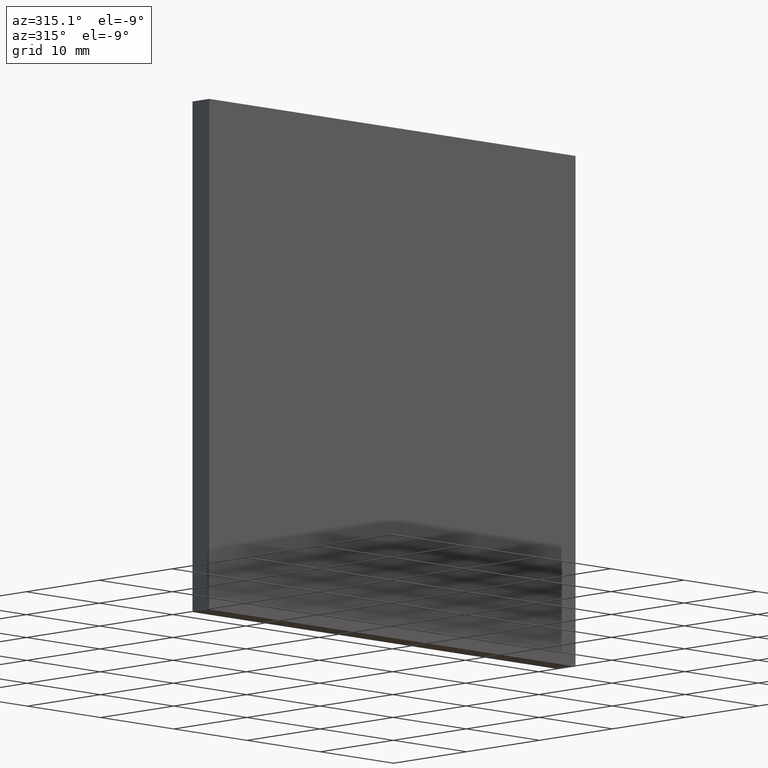
[diagram: clean part render]
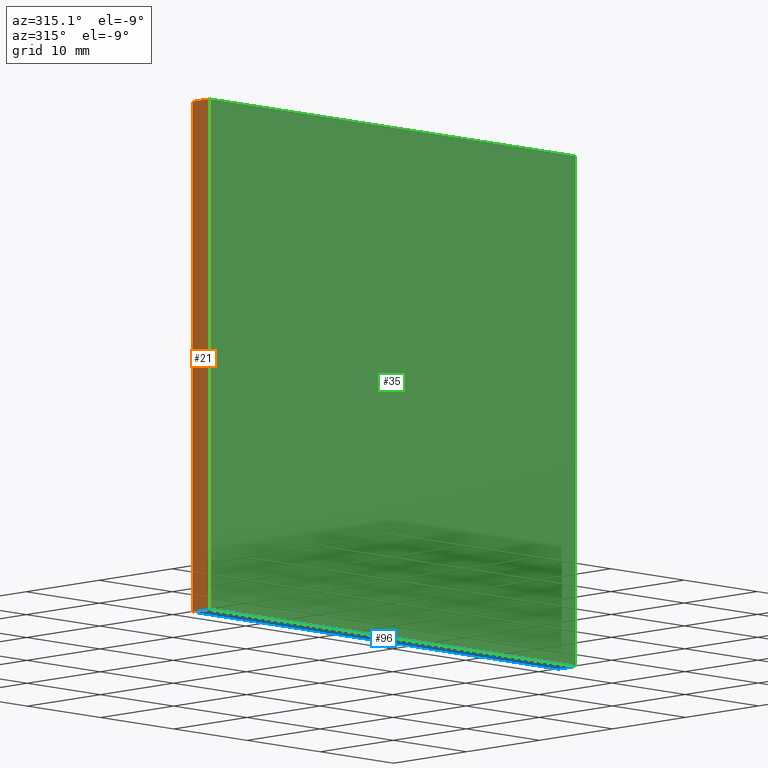
[diagram: same view with three faces highlighted in distinct colors, each labeled with its STEP entity id]
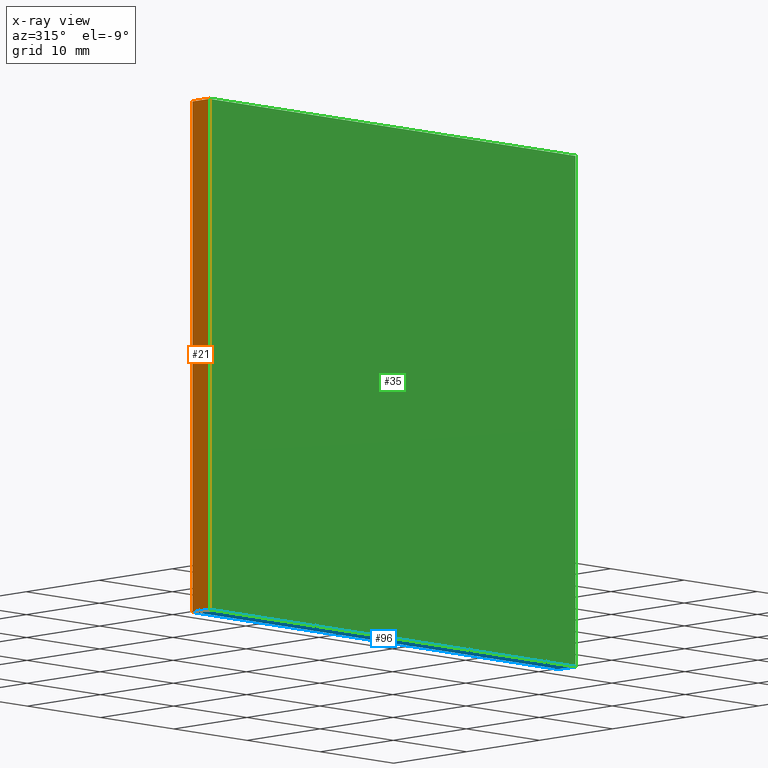
[diagram: x-ray of the same camera — body ghosted, the three highlighted faces saturated]
A machine part, auxiliary view with three faces highlighted in distinct colors.
The next image is the same camera in x-ray (body ghosted, the three faces saturated) — at least one of them is partly hidden behind the body in this view.
Their STEP definitions:

[orange] entity #21 — the highlighted planar face has unit normal (1, -0, 0).
#7 = DIRECTION ( 'NONE',  ( -0.0000000000000000000, -0.0000000000000000000, 1.000000000000000000 ) ) ;
#14 = ORIENTED_EDGE ( 'NONE', *, *, #66, .F. ) ;
#17 = DIRECTION ( 'NONE',  ( -0.0000000000000000000, -0.0000000000000000000, 1.000000000000000000 ) ) ;
#21 = ADVANCED_FACE ( 'NONE', ( #98 ), #199, .F. ) ;
#30 = CARTESIAN_POINT ( 'NONE',  ( -25.00000000000000400, 2.299999999999999800, -24.99999999999999600 ) ) ;
#38 = LINE ( 'NONE', #30, #43 ) ;
#43 = VECTOR ( 'NONE', #58, 1000.000000000000000 ) ;
#54 = CARTESIAN_POINT ( 'NONE',  ( -25.00000000000000400, 2.299999999999999800, 25.00000000000000400 ) ) ;
#58 = DIRECTION ( 'NONE',  ( -0.0000000000000000000, -1.000000000000000000, -0.0000000000000000000 ) ) ;
#60 = VERTEX_POINT ( 'NONE', #189 ) ;
#64 = DIRECTION ( 'NONE',  ( 0.0000000000000000000, 0.0000000000000000000, -1.000000000000000000 ) ) ;
#66 = EDGE_CURVE ( 'NONE', #92, #117, #76, .T. ) ;
#76 = LINE ( 'NONE', #54, #136 ) ;
#88 = LINE ( 'NONE', #194, #135 ) ;
#92 = VERTEX_POINT ( 'NONE', #149 ) ;
#93 = LINE ( 'NONE', #123, #185 ) ;
#97 = EDGE_CURVE ( 'NONE', #117, #60, #93, .T. ) ;
#98 = FACE_OUTER_BOUND ( 'NONE', #157, .T. ) ;
#116 = EDGE_CURVE ( 'NONE', #188, #60, #88, .T. ) ;
#117 = VERTEX_POINT ( 'NONE', #179 ) ;
#118 = DIRECTION ( 'NONE',  ( 1.000000000000000000, -0.0000000000000000000, 0.0000000000000000000 ) ) ;
#123 = CARTESIAN_POINT ( 'NONE',  ( -25.00000000000000400, 2.299999999999999800, 25.00000000000000400 ) ) ;
#130 = AXIS2_PLACEMENT_3D ( 'NONE', #140, #118, #64 ) ;
#135 = VECTOR ( 'NONE', #7, 1000.000000000000000 ) ;
#136 = VECTOR ( 'NONE', #17, 1000.000000000000000 ) ;
#140 = CARTESIAN_POINT ( 'NONE',  ( -25.00000000000000400, 2.299999999999999800, 25.00000000000000400 ) ) ;
#149 = CARTESIAN_POINT ( 'NONE',  ( -25.00000000000000400, 2.299999999999999800, -24.99999999999999600 ) ) ;
#154 = EDGE_CURVE ( 'NONE', #92, #188, #38, .T. ) ;
#157 = EDGE_LOOP ( 'NONE', ( #198, #159, #14, #169 ) ) ;
#159 = ORIENTED_EDGE ( 'NONE', *, *, #97, .F. ) ;
#169 = ORIENTED_EDGE ( 'NONE', *, *, #154, .T. ) ;
#176 = CARTESIAN_POINT ( 'NONE',  ( -25.00000000000000400, 0.0000000000000000000, -24.99999999999999600 ) ) ;
#179 = CARTESIAN_POINT ( 'NONE',  ( -25.00000000000000400, 2.299999999999999800, 25.00000000000000400 ) ) ;
#185 = VECTOR ( 'NONE', #190, 1000.000000000000000 ) ;
#188 = VERTEX_POINT ( 'NONE', #176 ) ;
#189 = CARTESIAN_POINT ( 'NONE',  ( -25.00000000000000400, 0.0000000000000000000, 25.00000000000000400 ) ) ;
#190 = DIRECTION ( 'NONE',  ( -0.0000000000000000000, -1.000000000000000000, -0.0000000000000000000 ) ) ;
#194 = CARTESIAN_POINT ( 'NONE',  ( -25.00000000000000400, 0.0000000000000000000, 25.00000000000000400 ) ) ;
#198 = ORIENTED_EDGE ( 'NONE', *, *, #116, .T. ) ;
#199 = PLANE ( 'NONE',  #130 ) ;

[blue] entity #96 — the highlighted planar face has unit normal (0, 0, 1).
#5 = LINE ( 'NONE', #37, #132 ) ;
#6 = VERTEX_POINT ( 'NONE', #197 ) ;
#10 = LINE ( 'NONE', #79, #86 ) ;
#24 = CARTESIAN_POINT ( 'NONE',  ( -25.00000000000000400, 2.299999999999999800, -24.99999999999999600 ) ) ;
#29 = CARTESIAN_POINT ( 'NONE',  ( -25.00000000000000400, 0.0000000000000000000, -24.99999999999999600 ) ) ;
#30 = CARTESIAN_POINT ( 'NONE',  ( -25.00000000000000400, 2.299999999999999800, -24.99999999999999600 ) ) ;
#31 = DIRECTION ( 'NONE',  ( -0.0000000000000000000, -1.000000000000000000, -0.0000000000000000000 ) ) ;
#37 = CARTESIAN_POINT ( 'NONE',  ( -25.00000000000000400, 2.299999999999999800, -24.99999999999999600 ) ) ;
#38 = LINE ( 'NONE', #30, #43 ) ;
#43 = VECTOR ( 'NONE', #58, 1000.000000000000000 ) ;
#47 = ORIENTED_EDGE ( 'NONE', *, *, #163, .T. ) ;
#50 = FACE_OUTER_BOUND ( 'NONE', #87, .T. ) ;
#51 = VERTEX_POINT ( 'NONE', #151 ) ;
#55 = ORIENTED_EDGE ( 'NONE', *, *, #145, .T. ) ;
#58 = DIRECTION ( 'NONE',  ( -0.0000000000000000000, -1.000000000000000000, -0.0000000000000000000 ) ) ;
#79 = CARTESIAN_POINT ( 'NONE',  ( 24.99999999999999600, 2.299999999999999800, -24.99999999999999600 ) ) ;
#80 = DIRECTION ( 'NONE',  ( 0.0000000000000000000, 0.0000000000000000000, 1.000000000000000000 ) ) ;
#86 = VECTOR ( 'NONE', #31, 1000.000000000000000 ) ;
#87 = EDGE_LOOP ( 'NONE', ( #47, #124, #156, #55 ) ) ;
#92 = VERTEX_POINT ( 'NONE', #149 ) ;
#95 = DIRECTION ( 'NONE',  ( -1.000000000000000000, -0.0000000000000000000, -0.0000000000000000000 ) ) ;
#96 = ADVANCED_FACE ( 'NONE', ( #50 ), #164, .F. ) ;
#100 = LINE ( 'NONE', #29, #175 ) ;
#104 = DIRECTION ( 'NONE',  ( 1.000000000000000000, 0.0000000000000000000, -0.0000000000000000000 ) ) ;
#124 = ORIENTED_EDGE ( 'NONE', *, *, #154, .F. ) ;
#132 = VECTOR ( 'NONE', #95, 1000.000000000000000 ) ;
#143 = EDGE_CURVE ( 'NONE', #6, #92, #5, .T. ) ;
#145 = EDGE_CURVE ( 'NONE', #6, #51, #10, .T. ) ;
#148 = DIRECTION ( 'NONE',  ( -1.000000000000000000, -0.0000000000000000000, -0.0000000000000000000 ) ) ;
#149 = CARTESIAN_POINT ( 'NONE',  ( -25.00000000000000400, 2.299999999999999800, -24.99999999999999600 ) ) ;
#151 = CARTESIAN_POINT ( 'NONE',  ( 24.99999999999999600, 0.0000000000000000000, -24.99999999999999600 ) ) ;
#154 = EDGE_CURVE ( 'NONE', #92, #188, #38, .T. ) ;
#156 = ORIENTED_EDGE ( 'NONE', *, *, #143, .F. ) ;
#163 = EDGE_CURVE ( 'NONE', #51, #188, #100, .T. ) ;
#164 = PLANE ( 'NONE',  #173 ) ;
#173 = AXIS2_PLACEMENT_3D ( 'NONE', #24, #80, #104 ) ;
#175 = VECTOR ( 'NONE', #148, 1000.000000000000000 ) ;
#176 = CARTESIAN_POINT ( 'NONE',  ( -25.00000000000000400, 0.0000000000000000000, -24.99999999999999600 ) ) ;
#188 = VERTEX_POINT ( 'NONE', #176 ) ;
#197 = CARTESIAN_POINT ( 'NONE',  ( 24.99999999999999600, 2.299999999999999800, -24.99999999999999600 ) ) ;

[green] entity #35 — the highlighted planar face has unit normal (0, -1, 0).
#2 = LINE ( 'NONE', #202, #191 ) ;
#4 = DIRECTION ( 'NONE',  ( 0.0000000000000000000, -1.000000000000000000, 0.0000000000000000000 ) ) ;
#7 = DIRECTION ( 'NONE',  ( -0.0000000000000000000, -0.0000000000000000000, 1.000000000000000000 ) ) ;
#15 = PLANE ( 'NONE',  #69 ) ;
#20 = CARTESIAN_POINT ( 'NONE',  ( 24.99999999999999600, 0.0000000000000000000, 25.00000000000000400 ) ) ;
#27 = CARTESIAN_POINT ( 'NONE',  ( 0.0000000000000000000, 0.0000000000000000000, 0.0000000000000000000 ) ) ;
#29 = CARTESIAN_POINT ( 'NONE',  ( -25.00000000000000400, 0.0000000000000000000, -24.99999999999999600 ) ) ;
#32 = ORIENTED_EDGE ( 'NONE', *, *, #84, .F. ) ;
#35 = ADVANCED_FACE ( 'NONE', ( #52 ), #15, .T. ) ;
#46 = DIRECTION ( 'NONE',  ( 0.0000000000000000000, -0.0000000000000000000, -1.000000000000000000 ) ) ;
#51 = VERTEX_POINT ( 'NONE', #151 ) ;
#52 = FACE_OUTER_BOUND ( 'NONE', #137, .T. ) ;
#60 = VERTEX_POINT ( 'NONE', #189 ) ;
#67 = CARTESIAN_POINT ( 'NONE',  ( 24.99999999999999600, 0.0000000000000000000, 25.00000000000000400 ) ) ;
#69 = AXIS2_PLACEMENT_3D ( 'NONE', #27, #4, #46 ) ;
#74 = DIRECTION ( 'NONE',  ( 1.000000000000000000, 0.0000000000000000000, 0.0000000000000000000 ) ) ;
#82 = EDGE_CURVE ( 'NONE', #60, #115, #2, .T. ) ;
#84 = EDGE_CURVE ( 'NONE', #115, #51, #112, .T. ) ;
#88 = LINE ( 'NONE', #194, #135 ) ;
#99 = ORIENTED_EDGE ( 'NONE', *, *, #116, .F. ) ;
#100 = LINE ( 'NONE', #29, #175 ) ;
#103 = ORIENTED_EDGE ( 'NONE', *, *, #82, .F. ) ;
#112 = LINE ( 'NONE', #20, #155 ) ;
#115 = VERTEX_POINT ( 'NONE', #67 ) ;
#116 = EDGE_CURVE ( 'NONE', #188, #60, #88, .T. ) ;
#135 = VECTOR ( 'NONE', #7, 1000.000000000000000 ) ;
#137 = EDGE_LOOP ( 'NONE', ( #32, #103, #99, #166 ) ) ;
#146 = DIRECTION ( 'NONE',  ( 0.0000000000000000000, 0.0000000000000000000, -1.000000000000000000 ) ) ;
#148 = DIRECTION ( 'NONE',  ( -1.000000000000000000, -0.0000000000000000000, -0.0000000000000000000 ) ) ;
#151 = CARTESIAN_POINT ( 'NONE',  ( 24.99999999999999600, 0.0000000000000000000, -24.99999999999999600 ) ) ;
#155 = VECTOR ( 'NONE', #146, 1000.000000000000000 ) ;
#163 = EDGE_CURVE ( 'NONE', #51, #188, #100, .T. ) ;
#166 = ORIENTED_EDGE ( 'NONE', *, *, #163, .F. ) ;
#175 = VECTOR ( 'NONE', #148, 1000.000000000000000 ) ;
#176 = CARTESIAN_POINT ( 'NONE',  ( -25.00000000000000400, 0.0000000000000000000, -24.99999999999999600 ) ) ;
#188 = VERTEX_POINT ( 'NONE', #176 ) ;
#189 = CARTESIAN_POINT ( 'NONE',  ( -25.00000000000000400, 0.0000000000000000000, 25.00000000000000400 ) ) ;
#191 = VECTOR ( 'NONE', #74, 1000.000000000000000 ) ;
#194 = CARTESIAN_POINT ( 'NONE',  ( -25.00000000000000400, 0.0000000000000000000, 25.00000000000000400 ) ) ;
#202 = CARTESIAN_POINT ( 'NONE',  ( -25.00000000000000400, 0.0000000000000000000, 25.00000000000000400 ) ) ;